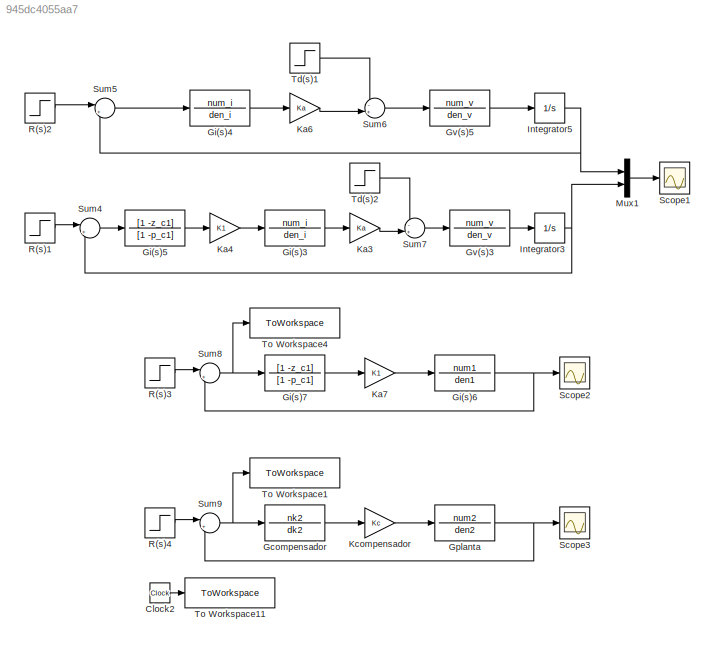
MODEL slx_945dc4055aa7
KIND model
CONFIG AbsTol = auto
CONFIG EnableMultiTasking = off
CONFIG FixedStep = auto
CONFIG MaxStep = auto
CONFIG MinStep = auto
CONFIG RelTol = 1e-3
CONFIG SampleTimeConstraint = Unconstrained
CONFIG SolverName = VariableStepAuto
CONFIG StartTime = 0.0
CONFIG StopTime = 35
BLOCK [Clock] Clock2
  Decimation = 20
BLOCK [TransferFcn] Gcompensador
  Denominator = dk2
  Numerator = nk2
BLOCK [TransferFcn] Gi(s)3
  Denominator = den_i
  Numerator = num_i
BLOCK [TransferFcn] Gi(s)4
  Denominator = den_i
  Numerator = num_i
BLOCK [TransferFcn] Gi(s)5
  Denominator = [1 -p_c1]
  Numerator = [1 -z_c1]
BLOCK [TransferFcn] Gi(s)6
  Denominator = den1
  Numerator = num1
BLOCK [TransferFcn] Gi(s)7
  Denominator = [1 -p_c1]
  Numerator = [1 -z_c1]
BLOCK [TransferFcn] Gplanta
  Denominator = den2
  Numerator = num2
BLOCK [TransferFcn] Gv(s)3
  Denominator = den_v
  Numerator = num_v
BLOCK [TransferFcn] Gv(s)5
  Denominator = den_v
  Numerator = num_v
BLOCK [Integrator] Integrator3
BLOCK [Integrator] Integrator5
BLOCK [Gain] Ka3
  Gain = Ka
BLOCK [Gain] Ka4
  Gain = K1
BLOCK [Gain] Ka6
  Gain = Ka
BLOCK [Gain] Ka7
  Gain = K1
BLOCK [Gain] Kcompensador
  Gain = Kc
BLOCK [Mux] Mux1
  DisplayOption = bar
  Inputs = 2
BLOCK [Step] R(s)1
  SampleTime = 0
BLOCK [Step] R(s)2
  SampleTime = 0
BLOCK [Step] R(s)3
  SampleTime = 0
BLOCK [Step] R(s)4
  SampleTime = 0
BLOCK [Scope] Scope1
  Floating = off
  NumInputPorts = 1
  ScopeSpecificationString = Simulink.scopes.TimeScopeBlockCfg('CurrentConfiguration', extmgr.ConfigurationSet(extmgr.Configuration('Core','General UI',true),extmgr.Configuration('Core','Source UI',true),extmgr.Configuration('Sources','WiredSimulink',true,'DataLoggingVariableName','ScopeData1'),extmgr.Configuration('Visuals','Time Domain',true,'SerializedDisplays',{struct('MinYLimReal','-4.49976','MaxYLimReal','0.49997','YLab...<+1413ch>
BLOCK [Scope] Scope2
  Floating = off
  NumInputPorts = 1
  ScopeSpecificationString = Simulink.scopes.TimeScopeBlockCfg('CurrentConfiguration', extmgr.ConfigurationSet(extmgr.Configuration('Core','General UI',true),extmgr.Configuration('Core','Source UI',true),extmgr.Configuration('Sources','WiredSimulink',true,'DataLoggingVariableName','ScopeData1'),extmgr.Configuration('Visuals','Time Domain',true,'SerializedDisplays',{struct('MinYLimReal','-0.14483','MaxYLimReal','1.30344','YLab...<+1394ch>
BLOCK [Scope] Scope3
  Floating = off
  NumInputPorts = 1
  ScopeSpecificationString = Simulink.scopes.TimeScopeBlockCfg('CurrentConfiguration', extmgr.ConfigurationSet(extmgr.Configuration('Core','General UI',true),extmgr.Configuration('Core','Source UI',true),extmgr.Configuration('Sources','WiredSimulink',true,'DataLoggingVariableName','ScopeData2'),extmgr.Configuration('Visuals','Time Domain',true,'SerializedDisplays',{struct('MinYLimReal','-0.14427','MaxYLimReal','1.29843','YLab...<+1394ch>
BLOCK [Sum] Sum4
  Inputs = |+-
BLOCK [Sum] Sum5
  Inputs = |+-
BLOCK [Sum] Sum6
  Inputs = -+|
BLOCK [Sum] Sum7
  Inputs = -+|
BLOCK [Sum] Sum8
  Inputs = |+-
BLOCK [Sum] Sum9
  Inputs = |+-
BLOCK [Step] Td(s)1
  SampleTime = 0
BLOCK [Step] Td(s)2
  SampleTime = 0
BLOCK [ToWorkspace] To Workspace1
  FixptAsFi = on
  MaxDataPoints = inf
  SampleTime = -1
  VariableName = e2
BLOCK [ToWorkspace] To Workspace11
  FixptAsFi = on
  MaxDataPoints = inf
  SampleTime = -1
  VariableName = tout1
BLOCK [ToWorkspace] To Workspace4
  FixptAsFi = on
  MaxDataPoints = inf
  SampleTime = -1
  VariableName = e1
LINE Clock2:1 -> To Workspace11:1
LINE Gcompensador:1 -> Kcompensador:1
LINE Gi(s)3:1 -> Ka3:1
LINE Gi(s)4:1 -> Ka6:1
LINE Gi(s)5:1 -> Ka4:1
NET Gi(s)6:1 -> Scope2:1, Sum8:2
LINE Gi(s)7:1 -> Ka7:1
NET Gplanta:1 -> Scope3:1, Sum9:2
LINE Gv(s)3:1 -> Integrator3:1
LINE Gv(s)5:1 -> Integrator5:1
NET Integrator3:1 -> Mux1:2, Sum4:2
NET Integrator5:1 -> Mux1:1, Sum5:2
LINE Ka3:1 -> Sum7:2
LINE Ka4:1 -> Gi(s)3:1
LINE Ka6:1 -> Sum6:2
LINE Ka7:1 -> Gi(s)6:1
LINE Kcompensador:1 -> Gplanta:1
LINE Mux1:1 -> Scope1:1
LINE R(s)1:1 -> Sum4:1
LINE R(s)2:1 -> Sum5:1
LINE R(s)3:1 -> Sum8:1
LINE R(s)4:1 -> Sum9:1
LINE Sum4:1 -> Gi(s)5:1
LINE Sum5:1 -> Gi(s)4:1
LINE Sum6:1 -> Gv(s)5:1
LINE Sum7:1 -> Gv(s)3:1
NET Sum8:1 -> Gi(s)7:1, To Workspace4:1
NET Sum9:1 -> Gcompensador:1, To Workspace1:1
LINE Td(s)1:1 -> Sum6:1
LINE Td(s)2:1 -> Sum7:1
note: NET lines group one-source signal fan-out (src -> all destinations, sorted); 1:1 wires keep LINE
